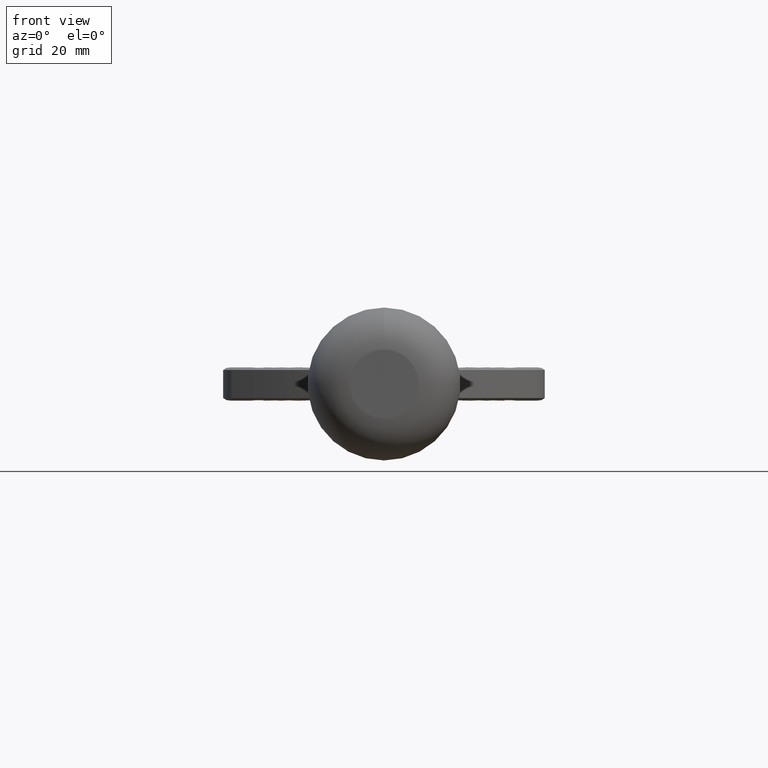
[diagram: clean part render]
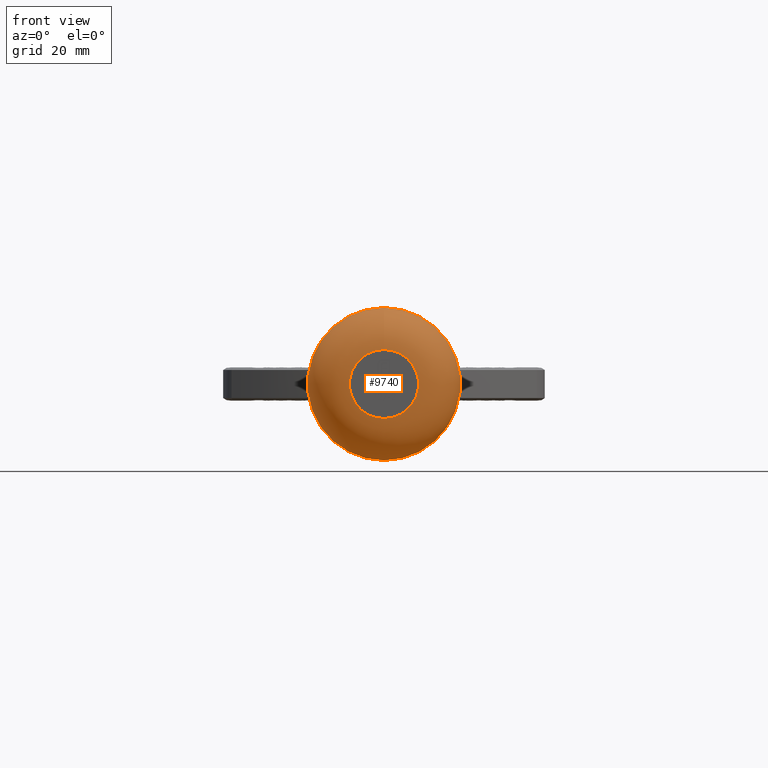
[diagram: same view with one face highlighted and labeled with its STEP entity id]
A machine part, front view. The second image highlights one B-rep face of the part: STEP entity #9740.
In plain terms, the highlighted toroidal blend (fillet) surface has major radius 6.75 mm and minor (blend) radius 8.25 mm.
Its self-contained STEP definition (entity closure, byte-faithful):
#177 = CARTESIAN_POINT ( 'NONE',  ( 14.07385881788040471, -19.40934486139152781, -4.129260560295160865 ) ) ;
#196 = CARTESIAN_POINT ( 'NONE',  ( 5.739781317346679401, -17.86389059393162526, 12.82051455225077419 ) ) ;
#220 = CARTESIAN_POINT ( 'NONE',  ( 13.79001140671309855, -19.34070796459995023, -4.916887610585289892 ) ) ;
#238 = CARTESIAN_POINT ( 'NONE',  ( 11.12099718372571644, -18.74362280154053906, 9.228544323679749084 ) ) ;
#280 = CARTESIAN_POINT ( 'NONE',  ( -10.60735968734228329, -18.63945462230235250, 9.753742601204525187 ) ) ;
#322 = CARTESIAN_POINT ( 'NONE',  ( 1.489675603983630303, -17.51924751889919918, 13.83117061118806568 ) ) ;
#542 = EDGE_CURVE ( 'NONE', #5412, #11896, #4676, .T. ) ;
#595 = CARTESIAN_POINT ( 'NONE',  ( -0.7397197471933926183, -17.51919571465572290, -13.83219947119096815 ) ) ;
#723 = CARTESIAN_POINT ( 'NONE',  ( -1.480698699643310023, -17.53802779033320647, -13.78382446333015388 ) ) ;
#982 = ORIENTED_EDGE ( 'NONE', *, *, #4604, .T. ) ;
#1011 = CARTESIAN_POINT ( 'NONE',  ( -14.40055356886978188, -19.49302519207843787, -2.908533824087573105 ) ) ;
#1088 = CARTESIAN_POINT ( 'NONE',  ( 0.000000000000000000, -30.00000000000000000, 6.750000000000000888 ) ) ;
#1227 = CARTESIAN_POINT ( 'NONE',  ( -2.907029069246572561, -17.59272813655512735, 13.64798194111523522 ) ) ;
#1271 = CARTESIAN_POINT ( 'NONE',  ( 9.505745691674219344, -18.43183168625041546, 10.69402286042674888 ) ) ;
#1316 = CARTESIAN_POINT ( 'NONE',  ( -1.462996419527951231, -17.51945833258248086, 13.83414395941192510 ) ) ;
#1356 = CARTESIAN_POINT ( 'NONE',  ( -5.022918073958723362, -17.78711814122978652, 13.05804000444036461 ) ) ;
#1390 = CARTESIAN_POINT ( 'NONE',  ( 0.000000000000000000, -30.00000000000000000, 0.000000000000000000 ) ) ;
#1405 = CARTESIAN_POINT ( 'NONE',  ( -6.052584342952100904, -17.90375030840924353, 12.68320632130367898 ) ) ;
#1519 = CARTESIAN_POINT ( 'NONE',  ( -13.79074411038370940, -19.34070796460176567, -4.914832169498542846 ) ) ;
#1609 = CARTESIAN_POINT ( 'NONE',  ( 12.47189961283214643, -19.03531161037639308, -7.511320940162002024 ) ) ;
#1689 = EDGE_CURVE ( 'NONE', #13370, #13370, #4619, .T. ) ;
#1747 = CARTESIAN_POINT ( 'NONE',  ( -3.640387314741418745, -17.65844092515062158, -13.44917949643277844 ) ) ;
#2091 = CARTESIAN_POINT ( 'NONE',  ( -14.30344516419590661, -19.46765138861006506, -3.321638986530601301 ) ) ;
#2300 = CARTESIAN_POINT ( 'NONE',  ( -12.45535652686098160, -19.03211974342755397, 7.509860648006609019 ) ) ;
#2329 = CARTESIAN_POINT ( 'NONE',  ( 14.68885334085457295, -19.56958888480802372, 0.8370082674466275963 ) ) ;
#2343 = CARTESIAN_POINT ( 'NONE',  ( -12.03441604437172607, -18.93908966215335354, 8.108375452475890199 ) ) ;
#2365 = EDGE_LOOP ( 'NONE', ( #982, #7010, #11695, #8121 ) ) ;
#2374 = CARTESIAN_POINT ( 'NONE',  ( 14.30436419597648801, -19.46752681463916446, -3.317785731618647649 ) ) ;
#2422 = CARTESIAN_POINT ( 'NONE',  ( -7.692232935370885372, -18.12664217831252245, 11.91355392964625004 ) ) ;
#2714 = CARTESIAN_POINT ( 'NONE',  ( -6.067489878200613695, -17.90621580653599310, -12.67761303867868250 ) ) ;
#2730 = AXIS2_PLACEMENT_3D ( 'NONE', #12394, #12346, #11353 ) ;
#2813 = CARTESIAN_POINT ( 'NONE',  ( 1.453372174739675504, -17.53783223621321952, -13.78652619877020591 ) ) ;
#2852 = CARTESIAN_POINT ( 'NONE',  ( 7.075347963901603698, -18.02652806775360261, -12.30091015326859427 ) ) ;
#3044 = CARTESIAN_POINT ( 'NONE',  ( -14.60976411334301694, -19.54782906364070527, 1.686222612314153046 ) ) ;
#3190 = CARTESIAN_POINT ( 'NONE',  ( -14.09082387959742455, -19.41211888156663434, 4.138148318452961050 ) ) ;
#3222 = B_SPLINE_CURVE_WITH_KNOTS ( 'NONE', 3,
 ( #7558, #8564, #5499, #11646, #12590, #9484, #10516, #238, #12705, #10605, #1271, #6416, #4478, #6540, #7594, #196, #7471, #8606, #322, #1316, #1227, #3437, #1356, #7516, #1405, #8648, #2422, #9641, #4517, #280, #8488, #12742, #2343, #2300, #3349, #10564, #3307, #4400 ),
 .UNSPECIFIED., .F., .F.,
 ( 4, 2, 2, 2, 2, 2, 2, 2, 2, 2, 2, 2, 2, 2, 2, 2, 2, 2, 4 ),
 ( 0.000000000000000000, 0.001106617949390503990, 0.002213235898781007981, 0.004426471797562016829, 0.006639707696343024809, 0.007746325645733531835, 0.008852943595124038861, 0.01106617949390505985, 0.01327941539268607737, 0.01770588719024811936, 0.02213235898781015440, 0.02323897693720066229, 0.02434559488659117019, 0.02655883078537218597, 0.02877206668415320176, 0.03098530258293421755, 0.03209192053232472891, 0.03319853848171523680, 0.03541177438049625953 ),
 .UNSPECIFIED. ) ;
#3307 = CARTESIAN_POINT ( 'NONE',  ( -13.52451982754801563, -19.27768199718144615, 5.604188647153787173 ) ) ;
#3349 = CARTESIAN_POINT ( 'NONE',  ( -12.65278224373056482, -19.07658303166755687, 7.203211091777538044 ) ) ;
#3437 = CARTESIAN_POINT ( 'NONE',  ( -4.670921301326162123, -17.75175041758848238, 13.16734250258238070 ) ) ;
#3464 = DIRECTION ( 'NONE',  ( 0.000000000000000000, 0.000000000000000000, 1.000000000000000000 ) ) ;
#3592 = VERTEX_POINT ( 'NONE', #4305 ) ;
#3759 = CARTESIAN_POINT ( 'NONE',  ( -7.714273845964180865, -18.13074741531475098, -11.90131820601197532 ) ) ;
#3858 = CARTESIAN_POINT ( 'NONE',  ( -10.33699011101225018, -18.58789542695154040, -9.988982436002517673 ) ) ;
#4189 = B_SPLINE_CURVE_WITH_KNOTS ( 'NONE', 3,
 ( #1519, #8756, #10879, #12807, #4539, #8625, #8709, #7836, #3858, #5922, #6826, #3759, #8942, #2714, #10952, #6966, #11003, #1747, #4802, #723, #595, #12006, #2813, #11961, #11096, #12145, #2852, #5871, #6918, #11050, #9966, #10915, #1609, #8846, #5826, #10013 ),
 .UNSPECIFIED., .F., .F.,
 ( 4, 2, 2, 2, 2, 2, 2, 2, 2, 2, 2, 2, 2, 2, 2, 2, 2, 4 ),
 ( 0.000000000000000000, 0.002218132558177811527, 0.004436265116355623053, 0.005545331395444530985, 0.006654397674533438049, 0.008872530232711254780, 0.01109066279088907411, 0.01219972906997798291, 0.01330879534906689171, 0.01552692790724471278, 0.01774506046542253385, 0.01996319302360035144, 0.02218132558177817251, 0.02661759069813380771, 0.02883572325631162878, 0.03105385581448944984, 0.03327198837266726744, 0.03549012093084508851 ),
 .UNSPECIFIED. ) ;
#4305 = CARTESIAN_POINT ( 'NONE',  ( 13.79001140671309855, -19.34070796459995023, -4.916887610585289892 ) ) ;
#4385 = CARTESIAN_POINT ( 'NONE',  ( 14.70742653170501768, -19.57400662582141493, -0.8476353203993391983 ) ) ;
#4400 = CARTESIAN_POINT ( 'NONE',  ( -13.79001140672057346, -19.34070796460176922, 4.916887610565974676 ) ) ;
#4478 = CARTESIAN_POINT ( 'NONE',  ( 8.624331822806190928, -18.27823876063438391, 11.32965719983427277 ) ) ;
#4517 = CARTESIAN_POINT ( 'NONE',  ( -9.514802395792340661, -18.43165627954081387, 10.70501686465651758 ) ) ;
#4539 = CARTESIAN_POINT ( 'NONE',  ( -12.04892780250284190, -18.94041037271498951, -8.112572827725474056 ) ) ;
#4604 = EDGE_CURVE ( 'NONE', #10852, #5412, #3222, .T. ) ;
#4619 = CIRCLE ( 'NONE', #10478, 6.750000000000000888 ) ;
#4676 = B_SPLINE_CURVE_WITH_KNOTS ( 'NONE', 3,
 ( #11292, #3190, #6305, #6161, #3044, #11345, #8253, #7213, #11444, #1011, #2091, #12437, #5170, #6119 ),
 .UNSPECIFIED., .F., .F.,
 ( 4, 2, 2, 2, 2, 2, 4 ),
 ( 0.01782103952676462877, 0.02035873084743746939, 0.02162757650777388796, 0.02289642216811031000, 0.02543411348878314715, 0.02670295914911956919, 0.02797180480945598430 ),
 .UNSPECIFIED. ) ;
#4802 = CARTESIAN_POINT ( 'NONE',  ( -2.928368314962252583, -17.60774930886003986, -13.59213195345312641 ) ) ;
#4944 = EDGE_CURVE ( 'NONE', #11896, #3592, #4189, .T. ) ;
#5170 = CARTESIAN_POINT ( 'NONE',  ( -13.94112637141062905, -19.37653441077125649, -4.525454582174883278 ) ) ;
#5412 = VERTEX_POINT ( 'NONE', #6677 ) ;
#5415 = CARTESIAN_POINT ( 'NONE',  ( 14.09423123394769561, -19.41300947823261680, 4.129027493139280303 ) ) ;
#5488 = CARTESIAN_POINT ( 'NONE',  ( 13.94025290174164944, -19.37637431454729153, -4.527944444881168984 ) ) ;
#5499 = CARTESIAN_POINT ( 'NONE',  ( 13.51166457722969128, -19.27443412188075911, 5.595665229507700289 ) ) ;
#5622 = FACE_OUTER_BOUND ( 'NONE', #9054, .T. ) ;
#5826 = CARTESIAN_POINT ( 'NONE',  ( 13.52438731064385458, -19.27765053853358879, -5.604531705133371844 ) ) ;
#5871 = CARTESIAN_POINT ( 'NONE',  ( 8.934446611669518035, -18.32802324559983376, -11.13504709768784018 ) ) ;
#5922 = CARTESIAN_POINT ( 'NONE',  ( -9.514504823714380777, -18.43177163656259054, -10.70554959443144050 ) ) ;
#6119 = CARTESIAN_POINT ( 'NONE',  ( -13.79074411038370940, -19.34070796460176567, -4.914832169498542846 ) ) ;
#6161 = CARTESIAN_POINT ( 'NONE',  ( -14.55089899080326532, -19.53207193244421802, 2.104216727566546208 ) ) ;
#6305 = CARTESIAN_POINT ( 'NONE',  ( -14.31905227901713218, -19.47112574151710973, 3.337909209155227597 ) ) ;
#6416 = CARTESIAN_POINT ( 'NONE',  ( 8.922849401238140743, -18.32891554516532295, 11.12604211616017480 ) ) ;
#6525 = CARTESIAN_POINT ( 'NONE',  ( 14.61125383789206289, -19.54888956240404951, 1.675289273403030021 ) ) ;
#6540 = CARTESIAN_POINT ( 'NONE',  ( 7.708187343074315301, -18.12981624944155712, 11.90475359748193362 ) ) ;
#6569 = DIRECTION ( 'NONE',  ( -0.000000000000000000, 1.000000000000000000, -0.000000000000000000 ) ) ;
#6677 = CARTESIAN_POINT ( 'NONE',  ( -13.79001140672057346, -19.34070796460176922, 4.916887610565974676 ) ) ;
#6826 = CARTESIAN_POINT ( 'NONE',  ( -8.934544231011846804, -18.32855096487866575, -11.13453707922267100 ) ) ;
#6918 = CARTESIAN_POINT ( 'NONE',  ( 9.519077273615918600, -18.43244181694802108, -10.70160046693846567 ) ) ;
#6966 = CARTESIAN_POINT ( 'NONE',  ( -5.037470531124483841, -17.78903400185528483, -13.05351879397278303 ) ) ;
#7010 = ORIENTED_EDGE ( 'NONE', *, *, #542, .T. ) ;
#7213 = CARTESIAN_POINT ( 'NONE',  ( -14.70835673183843006, -19.57484702587958125, -0.8330933518195519083 ) ) ;
#7471 = CARTESIAN_POINT ( 'NONE',  ( 5.042176000858002105, -17.78591584367498868, 13.06536151720855266 ) ) ;
#7516 = CARTESIAN_POINT ( 'NONE',  ( -5.713521191635005714, -17.86311294598264610, 12.81597558211470300 ) ) ;
#7543 = CARTESIAN_POINT ( 'NONE',  ( 14.62993425045079654, -19.55286455625656217, -1.678089817216090296 ) ) ;
#7558 = CARTESIAN_POINT ( 'NONE',  ( 13.79074411037358594, -19.34070796459930719, 4.914832169524709471 ) ) ;
#7579 = CARTESIAN_POINT ( 'NONE',  ( 14.32306269442642943, -19.47257364974662153, 3.322168909783471236 ) ) ;
#7594 = CARTESIAN_POINT ( 'NONE',  ( 7.070068693842879171, -18.03565653338893426, 12.24065851459705634 ) ) ;
#7633 = CARTESIAN_POINT ( 'NONE',  ( 13.79074411037358594, -19.34070796459930719, 4.914832169524709471 ) ) ;
#7836 = CARTESIAN_POINT ( 'NONE',  ( -10.60420804468366462, -18.64036343765766190, -9.736745893566542520 ) ) ;
#8121 = ORIENTED_EDGE ( 'NONE', *, *, #11936, .T. ) ;
#8253 = CARTESIAN_POINT ( 'NONE',  ( -14.70779475780600976, -19.57425441195901072, 0.4235684781618228589 ) ) ;
#8488 = CARTESIAN_POINT ( 'NONE',  ( -11.11350836392816355, -18.74251623454216542, 9.237363232490467979 ) ) ;
#8517 = CARTESIAN_POINT ( 'NONE',  ( 14.40004487284034518, -19.49240853092839032, -2.909636753338145976 ) ) ;
#8564 = CARTESIAN_POINT ( 'NONE',  ( 13.65797154785258627, -19.30907677996714966, 5.258613807756857383 ) ) ;
#8606 = CARTESIAN_POINT ( 'NONE',  ( 2.932693051645576698, -17.59411372364059645, 13.64284424870356816 ) ) ;
#8625 = CARTESIAN_POINT ( 'NONE',  ( -11.35580595644098167, -18.79339674947276961, -8.946609001626317337 ) ) ;
#8648 = CARTESIAN_POINT ( 'NONE',  ( -7.051185201108967959, -18.03223222435163109, 12.24956452886612190 ) ) ;
#8709 = CARTESIAN_POINT ( 'NONE',  ( -11.11315580960912719, -18.74303337954073001, -9.215879549495756606 ) ) ;
#8712 = ORIENTED_EDGE ( 'NONE', *, *, #1689, .T. ) ;
#8756 = CARTESIAN_POINT ( 'NONE',  ( -13.52508403914305823, -19.27741821103181508, -5.602693070654983565 ) ) ;
#8846 = CARTESIAN_POINT ( 'NONE',  ( 13.20682223416249457, -19.20297947113690284, -6.260340653042188563 ) ) ;
#8926 = B_SPLINE_CURVE_WITH_KNOTS ( 'NONE', 3,
 ( #220, #5488, #177, #2374, #8517, #7543, #4385, #11752, #2329, #6525, #10629, #7579, #5415, #11587 ),
 .UNSPECIFIED., .F., .F.,
 ( 4, 2, 2, 2, 2, 2, 4 ),
 ( 0.06360913998554322546, 0.06487627295087185220, 0.06614340591620047893, 0.06867767184685774629, 0.06994480481218637302, 0.07121193777751499976, 0.07374620370817226711 ),
 .UNSPECIFIED. ) ;
#8942 = CARTESIAN_POINT ( 'NONE',  ( -7.073949167166185603, -18.03613433512364495, -12.23908126536941232 ) ) ;
#9054 = EDGE_LOOP ( 'NONE', ( #8712 ) ) ;
#9484 = CARTESIAN_POINT ( 'NONE',  ( 12.46089061452611269, -19.03209986423292577, 7.528122974379996890 ) ) ;
#9641 = CARTESIAN_POINT ( 'NONE',  ( -8.923316534000779399, -18.32614689704039534, 11.14252152766460569 ) ) ;
#9740 = ADVANCED_FACE ( 'NONE', ( #12579, #5622 ), #9815, .T. ) ;
#9815 = TOROIDAL_SURFACE ( 'NONE', #2730, 6.749999999999999112, 8.250000000000000000 ) ;
#9966 = CARTESIAN_POINT ( 'NONE',  ( 11.11732739303261575, -18.74328375452171258, -9.233672982182309141 ) ) ;
#10013 = CARTESIAN_POINT ( 'NONE',  ( 13.79001140671309855, -19.34070796459995023, -4.916887610585289892 ) ) ;
#10478 = AXIS2_PLACEMENT_3D ( 'NONE', #1390, #6569, #3464 ) ;
#10516 = CARTESIAN_POINT ( 'NONE',  ( 12.04340615656599311, -18.93920967798029409, 8.119821895109769372 ) ) ;
#10564 = CARTESIAN_POINT ( 'NONE',  ( -13.20651151252811140, -19.20290022115082351, 6.261291447530152432 ) ) ;
#10605 = CARTESIAN_POINT ( 'NONE',  ( 9.791379097391674335, -18.48431341261474969, 10.46449059497182610 ) ) ;
#10629 = CARTESIAN_POINT ( 'NONE',  ( 14.55326588890319073, -19.53333774693278713, 2.090138399796657165 ) ) ;
#10852 = VERTEX_POINT ( 'NONE', #7633 ) ;
#10879 = CARTESIAN_POINT ( 'NONE',  ( -13.20252752272226893, -19.20139759691786807, -6.268406969600841094 ) ) ;
#10915 = CARTESIAN_POINT ( 'NONE',  ( 12.05370343506731956, -18.94211518117778326, -8.107453715695911001 ) ) ;
#10952 = CARTESIAN_POINT ( 'NONE',  ( -5.725309051447100117, -17.86507890712579538, -12.81182451433713432 ) ) ;
#11003 = CARTESIAN_POINT ( 'NONE',  ( -4.690453602623596119, -17.75394546055666112, -13.16161212864184371 ) ) ;
#11050 = CARTESIAN_POINT ( 'NONE',  ( 10.60969599632874782, -18.63992666333135162, -9.751400873235118283 ) ) ;
#11096 = CARTESIAN_POINT ( 'NONE',  ( 3.617714145695973826, -17.65668429030620956, -13.45475330623484389 ) ) ;
#11292 = CARTESIAN_POINT ( 'NONE',  ( -13.79001140672057346, -19.34070796460176922, 4.916887610565974676 ) ) ;
#11297 = CARTESIAN_POINT ( 'NONE',  ( -13.79074411038370940, -19.34070796460176567, -4.914832169498542846 ) ) ;
#11345 = CARTESIAN_POINT ( 'NONE',  ( -14.68836149937684965, -19.56894878014858108, 0.8436390899701765589 ) ) ;
#11353 = DIRECTION ( 'NONE',  ( 0.000000000000000000, 0.000000000000000000, 1.000000000000000000 ) ) ;
#11444 = CARTESIAN_POINT ( 'NONE',  ( -14.63207652362802769, -19.55414622302205530, -1.666143465945782776 ) ) ;
#11587 = CARTESIAN_POINT ( 'NONE',  ( 13.79074411037358594, -19.34070796459930719, 4.914832169524709471 ) ) ;
#11646 = CARTESIAN_POINT ( 'NONE',  ( 13.19220940974302536, -19.19965236495549021, 6.256473482066402525 ) ) ;
#11695 = ORIENTED_EDGE ( 'NONE', *, *, #4944, .T. ) ;
#11752 = CARTESIAN_POINT ( 'NONE',  ( 14.70825745687525377, -19.57467244237896864, 0.4124564938549639681 ) ) ;
#11896 = VERTEX_POINT ( 'NONE', #11297 ) ;
#11936 = EDGE_CURVE ( 'NONE', #3592, #10852, #8926, .T. ) ;
#11961 = CARTESIAN_POINT ( 'NONE',  ( 2.898127229443100195, -17.60629373734489178, -13.59765802949182323 ) ) ;
#12006 = CARTESIAN_POINT ( 'NONE',  ( 0.7258036720380598439, -17.51951196961665502, -13.83312555828127444 ) ) ;
#12145 = CARTESIAN_POINT ( 'NONE',  ( 5.744439243318891997, -17.84876481077843735, -12.87396508309166876 ) ) ;
#12346 = DIRECTION ( 'NONE',  ( -0.000000000000000000, 1.000000000000000000, -0.000000000000000000 ) ) ;
#12394 = CARTESIAN_POINT ( 'NONE',  ( 0.000000000000000000, -21.75000000000000000, 0.000000000000000000 ) ) ;
#12437 = CARTESIAN_POINT ( 'NONE',  ( -14.07389477470675665, -19.40944599668877757, -4.129031018534132791 ) ) ;
#12579 = FACE_OUTER_BOUND ( 'NONE', #2365, .T. ) ;
#12590 = CARTESIAN_POINT ( 'NONE',  ( 13.01847623478789906, -19.15937971742141244, 6.581193889380196005 ) ) ;
#12705 = CARTESIAN_POINT ( 'NONE',  ( 10.61604593508809380, -18.64089470070315002, 9.745540044822892156 ) ) ;
#12742 = CARTESIAN_POINT ( 'NONE',  ( -11.81132580460492854, -18.89062713191861675, 8.399413296990612565 ) ) ;
#12807 = CARTESIAN_POINT ( 'NONE',  ( -12.46477992925927225, -19.03298312602561637, -7.521736013776847862 ) ) ;
#13370 = VERTEX_POINT ( 'NONE', #1088 ) ;